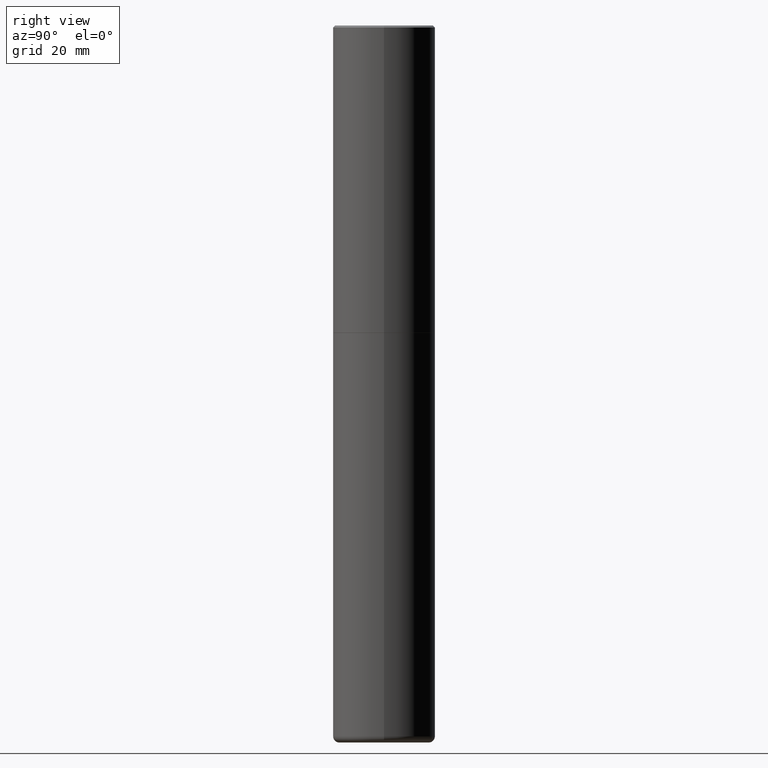
[diagram: clean part render]
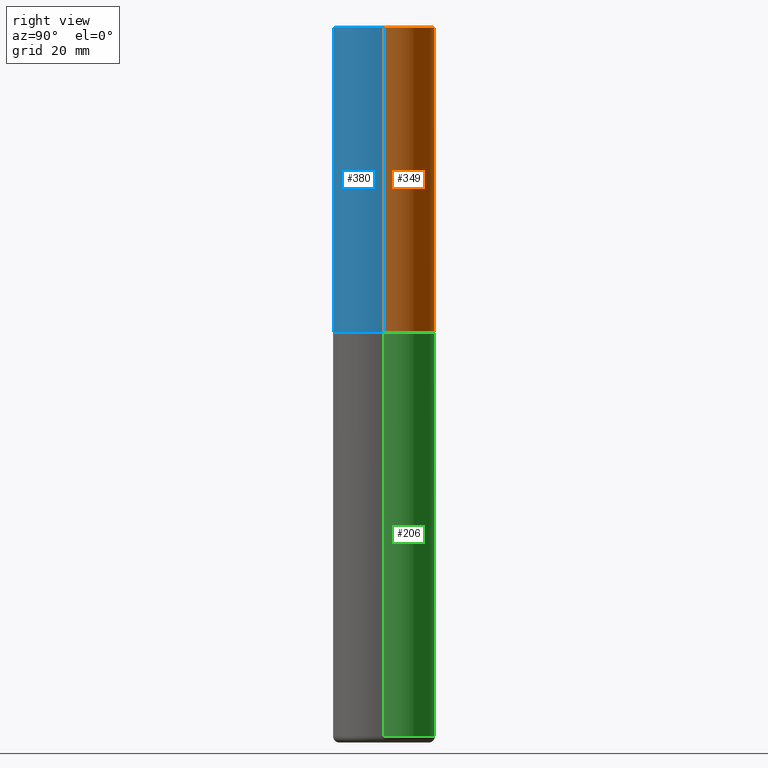
[diagram: same view with three faces highlighted in distinct colors, each labeled with its STEP entity id]
A machine part, right view with three faces highlighted in distinct colors.
Their STEP definitions:

[orange] entity #349 — the highlighted cylindrical surface (partial cylindrical patch) has radius 12.7 mm, axis along (-0, 0, 1).
#17 = CIRCLE ( 'NONE', #153, 0.5000000000000001110 ) ;
#28 = VERTEX_POINT ( 'NONE', #96 ) ;
#34 = DIRECTION ( 'NONE',  ( 1.000000000000000000, -6.982962677686266711E-15, 4.876176775795935793E-29 ) ) ;
#46 = VERTEX_POINT ( 'NONE', #131 ) ;
#65 = CARTESIAN_POINT ( 'NONE',  ( 0.5000000000000001110, -3.500078625662629868E-15, -0.02000000000000010797 ) ) ;
#77 = DIRECTION ( 'NONE',  ( -2.445468806185136877E-29, 3.491481338843145188E-15, 1.000000000000000000 ) ) ;
#90 = DIRECTION ( 'NONE',  ( 1.000000000000000000, -6.982962677686265922E-15, 0.000000000000000000 ) ) ;
#96 = CARTESIAN_POINT ( 'NONE',  ( -0.5000000000000003331, -1.717677402183223054E-15, -2.999000000000000110 ) ) ;
#131 = CARTESIAN_POINT ( 'NONE',  ( -0.5000000000000001110, 3.421651712066270452E-15, -0.02000000000000010797 ) ) ;
#133 = CYLINDRICAL_SURFACE ( 'NONE', #402, 0.5000000000000002220 ) ;
#140 = DIRECTION ( 'NONE',  ( 1.000000000000000000, -6.982962677686265922E-15, 0.000000000000000000 ) ) ;
#142 = DIRECTION ( 'NONE',  ( -2.445468806185136877E-29, 3.491481338843145188E-15, 1.000000000000000000 ) ) ;
#153 = AXIS2_PLACEMENT_3D ( 'NONE', #181, #294, #140 ) ;
#171 = DIRECTION ( 'NONE',  ( -2.445468806185136597E-29, 3.491481338843145583E-15, 1.000000000000000000 ) ) ;
#175 = EDGE_CURVE ( 'NONE', #273, #46, #17, .T. ) ;
#181 = CARTESIAN_POINT ( 'NONE',  ( 4.890937612370299433E-31, -6.982962677686328587E-17, -0.02000000000000010797 ) ) ;
#186 = EDGE_CURVE ( 'NONE', #223, #273, #267, .T. ) ;
#195 = CARTESIAN_POINT ( 'NONE',  ( 7.333960949749225308E-29, -1.047095253519059177E-14, -2.999000000000000110 ) ) ;
#223 = VERTEX_POINT ( 'NONE', #248 ) ;
#224 = VECTOR ( 'NONE', #77, 39.37007874015748143 ) ;
#230 = CIRCLE ( 'NONE', #262, 0.5000000000000003331 ) ;
#243 = VECTOR ( 'NONE', #142, 39.37007874015748143 ) ;
#248 = CARTESIAN_POINT ( 'NONE',  ( 0.5000000000000003331, -1.396243387403372828E-14, -2.999000000000000110 ) ) ;
#250 = DIRECTION ( 'NONE',  ( -2.445468806185136597E-29, 3.491481338843145583E-15, 1.000000000000000000 ) ) ;
#253 = EDGE_CURVE ( 'NONE', #223, #28, #230, .T. ) ;
#256 = ORIENTED_EDGE ( 'NONE', *, *, #253, .T. ) ;
#261 = FACE_OUTER_BOUND ( 'NONE', #329, .T. ) ;
#262 = AXIS2_PLACEMENT_3D ( 'NONE', #195, #250, #90 ) ;
#267 = LINE ( 'NONE', #395, #243 ) ;
#273 = VERTEX_POINT ( 'NONE', #65 ) ;
#286 = LINE ( 'NONE', #361, #224 ) ;
#294 = DIRECTION ( 'NONE',  ( -2.445468806185136597E-29, 3.491481338843145583E-15, 1.000000000000000000 ) ) ;
#319 = CARTESIAN_POINT ( 'NONE',  ( 0.000000000000000000, 0.000000000000000000, 0.000000000000000000 ) ) ;
#329 = EDGE_LOOP ( 'NONE', ( #256, #336, #397, #378 ) ) ;
#336 = ORIENTED_EDGE ( 'NONE', *, *, #368, .T. ) ;
#349 = ADVANCED_FACE ( 'NONE', ( #261 ), #133, .T. ) ;
#361 = CARTESIAN_POINT ( 'NONE',  ( -0.5000000000000002220, 3.552713678800502507E-15, -2.459467545127454012E-29 ) ) ;
#368 = EDGE_CURVE ( 'NONE', #28, #46, #286, .T. ) ;
#378 = ORIENTED_EDGE ( 'NONE', *, *, #186, .F. ) ;
#395 = CARTESIAN_POINT ( 'NONE',  ( 0.5000000000000002220, -3.491481338843134933E-15, 2.438088387897969017E-29 ) ) ;
#397 = ORIENTED_EDGE ( 'NONE', *, *, #175, .F. ) ;
#402 = AXIS2_PLACEMENT_3D ( 'NONE', #319, #171, #34 ) ;

[blue] entity #380 — the highlighted cylindrical surface (partial cylindrical patch) has radius 12.7 mm, axis along (-0, 0, 1).
#1 = ORIENTED_EDGE ( 'NONE', *, *, #186, .T. ) ;
#23 = CIRCLE ( 'NONE', #407, 0.5000000000000001110 ) ;
#24 = DIRECTION ( 'NONE',  ( 1.000000000000000000, -6.982962677686266711E-15, 4.876176775795935793E-29 ) ) ;
#28 = VERTEX_POINT ( 'NONE', #96 ) ;
#46 = VERTEX_POINT ( 'NONE', #131 ) ;
#55 = DIRECTION ( 'NONE',  ( -2.445468806185136597E-29, 3.491481338843145583E-15, 1.000000000000000000 ) ) ;
#65 = CARTESIAN_POINT ( 'NONE',  ( 0.5000000000000001110, -3.500078625662629868E-15, -0.02000000000000010797 ) ) ;
#69 = ORIENTED_EDGE ( 'NONE', *, *, #216, .F. ) ;
#70 = AXIS2_PLACEMENT_3D ( 'NONE', #139, #313, #98 ) ;
#74 = DIRECTION ( 'NONE',  ( 1.000000000000000000, -6.982962677686265922E-15, 0.000000000000000000 ) ) ;
#77 = DIRECTION ( 'NONE',  ( -2.445468806185136877E-29, 3.491481338843145188E-15, 1.000000000000000000 ) ) ;
#82 = CYLINDRICAL_SURFACE ( 'NONE', #332, 0.5000000000000002220 ) ;
#96 = CARTESIAN_POINT ( 'NONE',  ( -0.5000000000000003331, -1.717677402183223054E-15, -2.999000000000000110 ) ) ;
#98 = DIRECTION ( 'NONE',  ( 1.000000000000000000, -6.982962677686265922E-15, 0.000000000000000000 ) ) ;
#116 = FACE_OUTER_BOUND ( 'NONE', #284, .T. ) ;
#131 = CARTESIAN_POINT ( 'NONE',  ( -0.5000000000000001110, 3.421651712066270452E-15, -0.02000000000000010797 ) ) ;
#139 = CARTESIAN_POINT ( 'NONE',  ( 7.333960949749225308E-29, -1.047095253519059177E-14, -2.999000000000000110 ) ) ;
#142 = DIRECTION ( 'NONE',  ( -2.445468806185136877E-29, 3.491481338843145188E-15, 1.000000000000000000 ) ) ;
#167 = ORIENTED_EDGE ( 'NONE', *, *, #368, .F. ) ;
#186 = EDGE_CURVE ( 'NONE', #223, #273, #267, .T. ) ;
#216 = EDGE_CURVE ( 'NONE', #46, #273, #23, .T. ) ;
#221 = CIRCLE ( 'NONE', #70, 0.5000000000000003331 ) ;
#223 = VERTEX_POINT ( 'NONE', #248 ) ;
#224 = VECTOR ( 'NONE', #77, 39.37007874015748143 ) ;
#234 = CARTESIAN_POINT ( 'NONE',  ( 4.890937612370299433E-31, -6.982962677686328587E-17, -0.02000000000000010797 ) ) ;
#243 = VECTOR ( 'NONE', #142, 39.37007874015748143 ) ;
#248 = CARTESIAN_POINT ( 'NONE',  ( 0.5000000000000003331, -1.396243387403372828E-14, -2.999000000000000110 ) ) ;
#267 = LINE ( 'NONE', #395, #243 ) ;
#273 = VERTEX_POINT ( 'NONE', #65 ) ;
#278 = ORIENTED_EDGE ( 'NONE', *, *, #365, .T. ) ;
#279 = CARTESIAN_POINT ( 'NONE',  ( 0.000000000000000000, 0.000000000000000000, 0.000000000000000000 ) ) ;
#284 = EDGE_LOOP ( 'NONE', ( #167, #278, #1, #69 ) ) ;
#286 = LINE ( 'NONE', #361, #224 ) ;
#313 = DIRECTION ( 'NONE',  ( -2.445468806185136597E-29, 3.491481338843145583E-15, 1.000000000000000000 ) ) ;
#332 = AXIS2_PLACEMENT_3D ( 'NONE', #279, #55, #24 ) ;
#360 = DIRECTION ( 'NONE',  ( -2.445468806185136597E-29, 3.491481338843145583E-15, 1.000000000000000000 ) ) ;
#361 = CARTESIAN_POINT ( 'NONE',  ( -0.5000000000000002220, 3.552713678800502507E-15, -2.459467545127454012E-29 ) ) ;
#365 = EDGE_CURVE ( 'NONE', #28, #223, #221, .T. ) ;
#368 = EDGE_CURVE ( 'NONE', #28, #46, #286, .T. ) ;
#380 = ADVANCED_FACE ( 'NONE', ( #116 ), #82, .T. ) ;
#395 = CARTESIAN_POINT ( 'NONE',  ( 0.5000000000000002220, -3.491481338843134933E-15, 2.438088387897969017E-29 ) ) ;
#407 = AXIS2_PLACEMENT_3D ( 'NONE', #234, #360, #74 ) ;

[green] entity #206 — the highlighted cylindrical surface (partial cylindrical patch) has radius 12.7 mm, axis along (-0, 0, 1).
#10 = DIRECTION ( 'NONE',  ( -2.445468806185136597E-29, 3.491481338843145583E-15, 1.000000000000000000 ) ) ;
#13 = VECTOR ( 'NONE', #130, 39.37007874015748143 ) ;
#33 = AXIS2_PLACEMENT_3D ( 'NONE', #215, #323, #242 ) ;
#50 = ORIENTED_EDGE ( 'NONE', *, *, #322, .F. ) ;
#57 = CIRCLE ( 'NONE', #312, 0.5000000000000001110 ) ;
#68 = CYLINDRICAL_SURFACE ( 'NONE', #320, 0.5000000000000000000 ) ;
#81 = ORIENTED_EDGE ( 'NONE', *, *, #373, .F. ) ;
#104 = CARTESIAN_POINT ( 'NONE',  ( -0.5000000000000002220, -2.067816681277092470E-14, -6.939999999999999503 ) ) ;
#108 = FACE_OUTER_BOUND ( 'NONE', #185, .T. ) ;
#118 = ORIENTED_EDGE ( 'NONE', *, *, #343, .T. ) ;
#130 = DIRECTION ( 'NONE',  ( -2.445468806185136877E-29, 3.491481338843145188E-15, 1.000000000000000000 ) ) ;
#163 = DIRECTION ( 'NONE',  ( 1.000000000000000000, -6.982962677686269077E-15, 0.000000000000000000 ) ) ;
#169 = LINE ( 'NONE', #176, #13 ) ;
#172 = DIRECTION ( 'NONE',  ( 1.000000000000000000, -6.982962677686266711E-15, 4.876176775795935793E-29 ) ) ;
#176 = CARTESIAN_POINT ( 'NONE',  ( -0.5000000000000000000, 3.552713678800500929E-15, -2.459467545127452891E-29 ) ) ;
#185 = EDGE_LOOP ( 'NONE', ( #342, #118, #81, #50 ) ) ;
#198 = DIRECTION ( 'NONE',  ( -2.445468806185136597E-29, 3.491481338843145583E-15, 1.000000000000000000 ) ) ;
#206 = ADVANCED_FACE ( 'NONE', ( #108 ), #68, .T. ) ;
#207 = CARTESIAN_POINT ( 'NONE',  ( 0.5000000000000000000, -3.491481338843133355E-15, 2.438088387897967896E-29 ) ) ;
#215 = CARTESIAN_POINT ( 'NONE',  ( 7.336406418555408669E-29, -1.047444401652943478E-14, -2.999999999999999556 ) ) ;
#226 = CARTESIAN_POINT ( 'NONE',  ( 1.697155351492484915E-28, -2.423088049157142879E-14, -6.939999999999999503 ) ) ;
#236 = VERTEX_POINT ( 'NONE', #379 ) ;
#238 = VECTOR ( 'NONE', #258, 39.37007874015748143 ) ;
#240 = EDGE_CURVE ( 'NONE', #236, #334, #57, .T. ) ;
#241 = VERTEX_POINT ( 'NONE', #283 ) ;
#242 = DIRECTION ( 'NONE',  ( 1.000000000000000000, -6.982962677686266711E-15, 0.000000000000000000 ) ) ;
#258 = DIRECTION ( 'NONE',  ( -2.445468806185136877E-29, 3.491481338843145188E-15, 1.000000000000000000 ) ) ;
#283 = CARTESIAN_POINT ( 'NONE',  ( -0.5000000000000000000, -1.379994857524993085E-14, -2.999999999999999556 ) ) ;
#297 = VERTEX_POINT ( 'NONE', #390 ) ;
#298 = CIRCLE ( 'NONE', #33, 0.5000000000000000000 ) ;
#312 = AXIS2_PLACEMENT_3D ( 'NONE', #226, #198, #163 ) ;
#318 = CARTESIAN_POINT ( 'NONE',  ( 0.000000000000000000, 0.000000000000000000, 0.000000000000000000 ) ) ;
#320 = AXIS2_PLACEMENT_3D ( 'NONE', #318, #10, #172 ) ;
#322 = EDGE_CURVE ( 'NONE', #236, #297, #351, .T. ) ;
#323 = DIRECTION ( 'NONE',  ( -2.445468806185136597E-29, 3.491481338843145583E-15, 1.000000000000000000 ) ) ;
#334 = VERTEX_POINT ( 'NONE', #104 ) ;
#342 = ORIENTED_EDGE ( 'NONE', *, *, #240, .T. ) ;
#343 = EDGE_CURVE ( 'NONE', #334, #241, #169, .T. ) ;
#351 = LINE ( 'NONE', #207, #238 ) ;
#373 = EDGE_CURVE ( 'NONE', #297, #241, #298, .T. ) ;
#379 = CARTESIAN_POINT ( 'NONE',  ( 0.5000000000000002220, -2.772236183041456530E-14, -6.939999999999999503 ) ) ;
#390 = CARTESIAN_POINT ( 'NONE',  ( 0.5000000000000000000, -1.396592535537256813E-14, -2.999999999999999556 ) ) ;